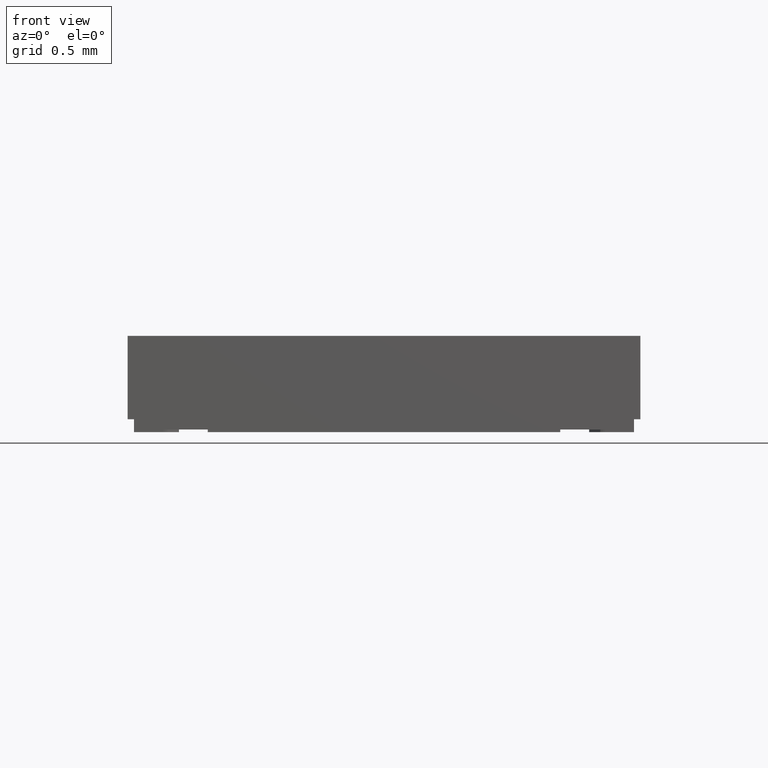
[diagram: clean part render]
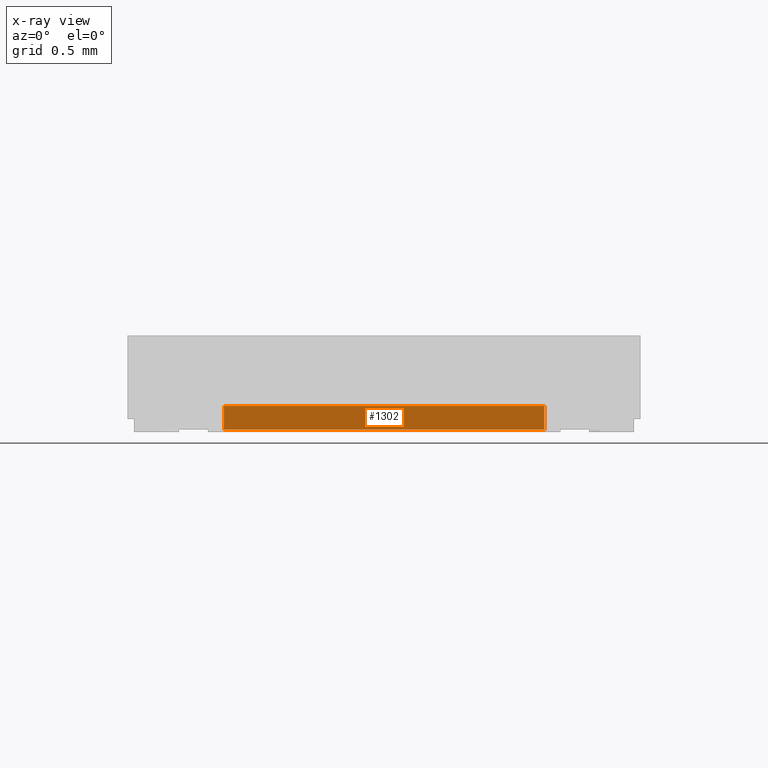
[diagram: x-ray — body ghosted, one internal face saturated and labeled with its STEP entity id]
A machine part, front view, then the same camera in x-ray: the body is ghosted and one INTERNAL B-rep face — a face not visible from any outside direction — is saturated and labeled: STEP entity #1302.
In plain terms, the highlighted planar face has unit normal (-0, -1, 0).
Its self-contained STEP definition (entity closure, byte-faithful):
#1302=ADVANCED_FACE('',(#2564),#2565,.F.);
#2564=FACE_OUTER_BOUND('',#3857,.T.);
#2565=PLANE('',#3858);
#3857=EDGE_LOOP('',(#7402,#7403,#7404,#7405));
#3858=AXIS2_PLACEMENT_3D('',#7406,#7407,#7408);
#7402=ORIENTED_EDGE('',*,*,#8621,.F.);
#7403=ORIENTED_EDGE('',*,*,#8944,.T.);
#7404=ORIENTED_EDGE('',*,*,#8946,.F.);
#7405=ORIENTED_EDGE('',*,*,#8947,.F.);
#7406=CARTESIAN_POINT('',(-0.0112166299113348,-1.23878345471988,0.0));
#7407=DIRECTION('',(-5.32907051820075E-16,-1.0,0.0));
#7408=DIRECTION('',(1.0,-5.32907051820075E-16,0.0));
#8621=EDGE_CURVE('',#10613,#10606,#10615,.T.);
#8944=EDGE_CURVE('',#10613,#11049,#11051,.T.);
#8946=EDGE_CURVE('',#11053,#11049,#11054,.T.);
#8947=EDGE_CURVE('',#10606,#11053,#11055,.T.);
#10606=VERTEX_POINT('',#13420);
#10613=VERTEX_POINT('',#13430);
#10615=LINE('',#13433,#13434);
#11049=VERTEX_POINT('',#14032);
#11051=LINE('',#14035,#14036);
#11053=VERTEX_POINT('',#14038);
#11054=LINE('',#14039,#14040);
#11055=LINE('',#14041,#14042);
#13420=CARTESIAN_POINT('',(1.23878337008867,-1.23878345471988,0.02));
#13430=CARTESIAN_POINT('',(-1.26121662991133,-1.23878345471988,0.02));
#13433=CARTESIAN_POINT('',(-0.0112166299113349,-1.23878345471988,0.02));
#13434=VECTOR('',#15014,1.0);
#14032=CARTESIAN_POINT('',(-1.26121662991133,-1.23878345471988,0.203));
#14035=CARTESIAN_POINT('',(-1.26121662991133,-1.23878345471988,0.0));
#14036=VECTOR('',#15372,1.0);
#14038=CARTESIAN_POINT('',(1.23878337008867,-1.23878345471988,0.203));
#14039=CARTESIAN_POINT('',(-1.26121662991133,-1.23878345471988,0.203));
#14040=VECTOR('',#15373,1.0);
#14041=CARTESIAN_POINT('',(1.23878337008867,-1.23878345471988,0.0));
#14042=VECTOR('',#15374,1.0);
#15014=DIRECTION('',(1.0,-5.32907051820075E-16,0.0));
#15372=DIRECTION('',(0.0,0.0,1.0));
#15373=DIRECTION('',(-1.0,5.32907051820075E-16,0.0));
#15374=DIRECTION('',(0.0,0.0,1.0));